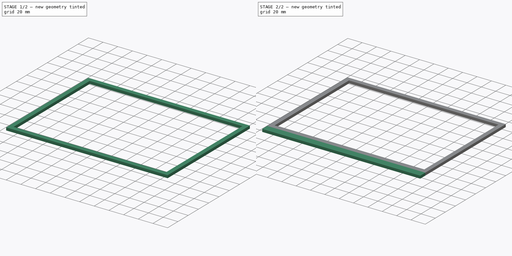
[diagram: build sequence overview — one tinted view per stage of 2, left to right]
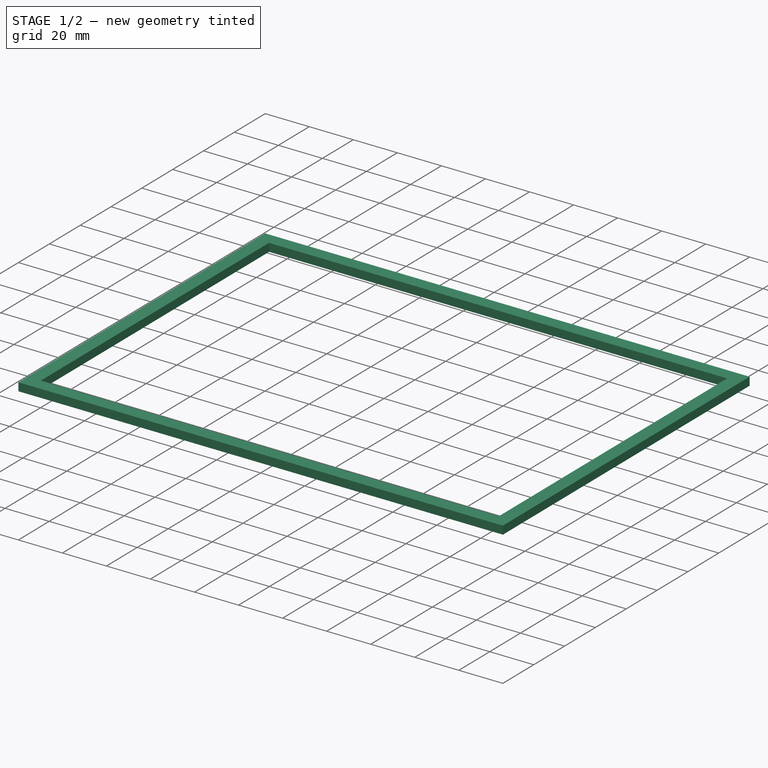
[diagram: stage 1 of 2 — iso view after this stage's code; geometry added in this stage tinted green]
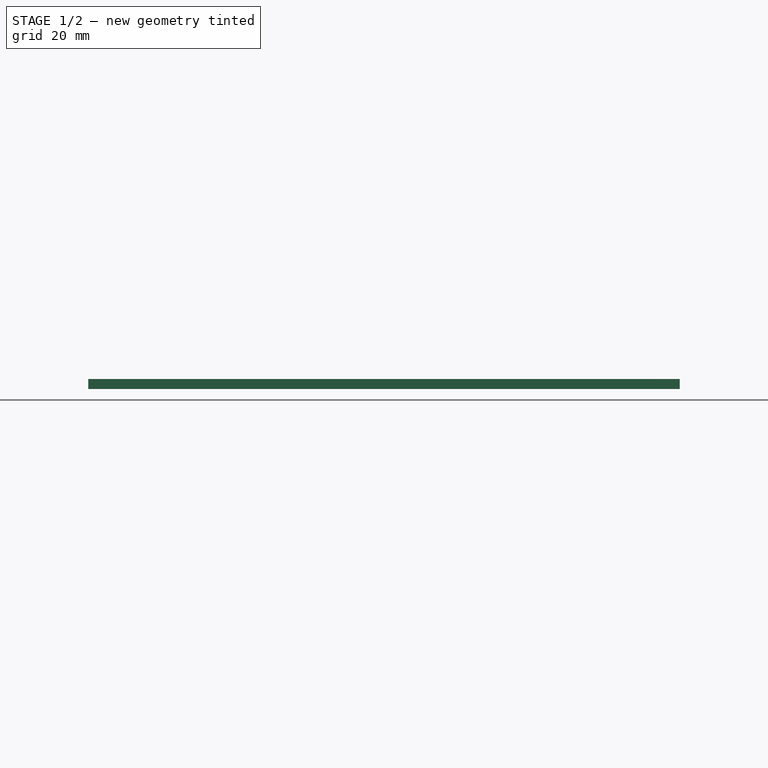
[diagram: stage 1 of 2 — front view after this stage's code; geometry added in this stage tinted green]
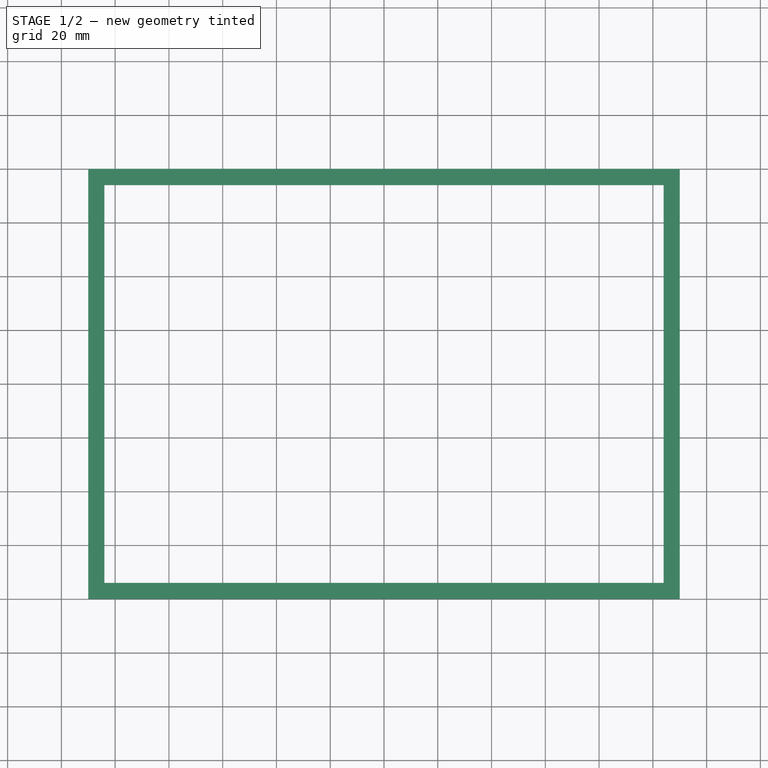
[diagram: stage 1 of 2 — top view after this stage's code; geometry added in this stage tinted green]
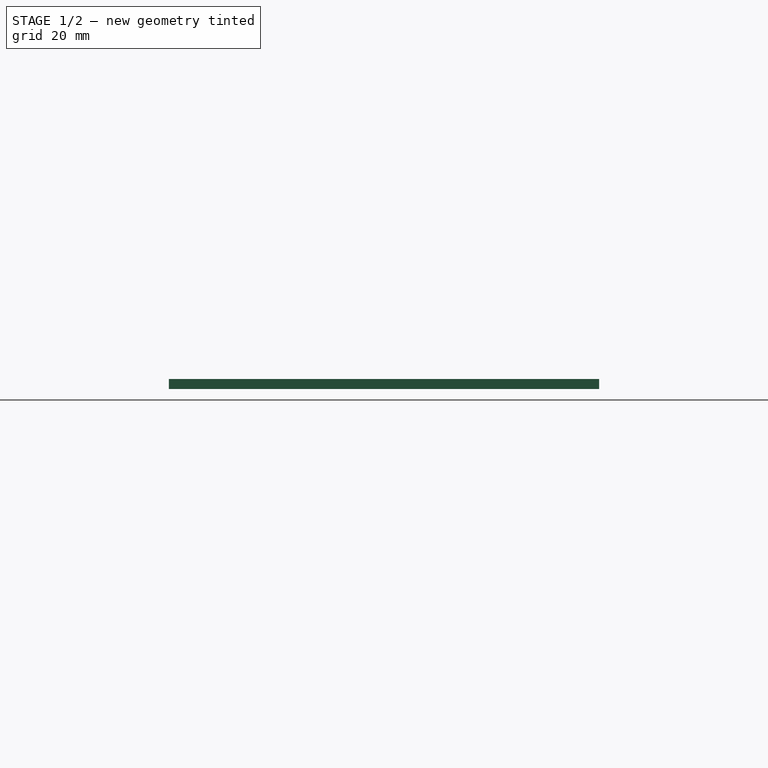
[diagram: stage 1 of 2 — right view after this stage's code; geometry added in this stage tinted green]
FCSTD DOCUMENT  (FreeCAD 0.21R33668 +26 (Git))
Label: overlay
License: All rights reserved
LicenseURL: https://en.wikipedia.org/wiki/All_rights_reserved
objects: Sketcher::SketchObject×2, PartDesign::Pad×2, PartDesign::Pocket×1, PartDesign::Body×1, Part::Part2DObjectPython×1
note: 10 computed .brp shape members not serialized (recipe doc carries the construction recipe); baked Part::Feature solids carry a one-line shape summary decoded from their .brp

FEATURE [Sketcher::SketchObject] Sketch
  FullyConstrained = true
  MapMode = 5
  Support = -> [XY_Plane]
  sketch-geometry (4):
    g0: LineSegment StartX=-110 StartY=80 StartZ=0 EndX=110 EndY=80 EndZ=0
    g1: LineSegment StartX=110 StartY=80 StartZ=0 EndX=110 EndY=-80 EndZ=0
    g2: LineSegment StartX=110 StartY=-80 StartZ=0 EndX=-110 EndY=-80 EndZ=0
    g3: LineSegment StartX=-110 StartY=-80 StartZ=0 EndX=-110 EndY=80 EndZ=0
  constraints (10):
    c: Coincident(g0,g1)
    c: Coincident(g1,g2)
    c: Coincident(g2,g3)
    c: Coincident(g3,g0)
    c: Horizontal(g2)
    c: Vertical(g3)
    c: Symmetric(g0,g0,g-2)
    c: Symmetric(g0,g1,g-1)
    c: DistanceX(g0,g0) = 220
    c: DistanceY(g1,g1) = 160
FEATURE [PartDesign::Pad] Pad
  Direction = (0,0,1)
  Length = 3.7
  Length2 = 10
  Profile = -> Sketch
  ReferenceAxis = -> Sketch [N_Axis]
  Type = 0
FEATURE [Sketcher::SketchObject] Sketch001
  FullyConstrained = true
  MapMode = 5
  Placement = pos=(0,0,3.7) rot=(0,0,1;0rad)
  Support = -> [Pad]
  sketch-geometry (4):
    g0: LineSegment StartX=-104 StartY=74 StartZ=0 EndX=104 EndY=74 EndZ=0
    g1: LineSegment StartX=104 StartY=74 StartZ=0 EndX=104 EndY=-74 EndZ=0
    g2: LineSegment StartX=104 StartY=-74 StartZ=0 EndX=-104 EndY=-74 EndZ=0
    g3: LineSegment StartX=-104 StartY=-74 StartZ=0 EndX=-104 EndY=74 EndZ=0
  constraints (10):
    c: Coincident(g0,g1)
    c: Coincident(g1,g2)
    c: Coincident(g2,g3)
    c: Coincident(g3,g0)
    c: Horizontal(g2)
    c: Vertical(g1)
    c: Symmetric(g0,g2,g-1)
    c: Symmetric(g0,g0,g-2)
    c: DistanceY(g1,g1) = 148
    c: DistanceX(g0,g0) = 208
FEATURE [PartDesign::Pocket] Pocket
  BaseFeature = -> Pad
  Direction = (0,0,-1)
  Length = 5
  Length2 = 5
  Profile = -> Sketch001
  ReferenceAxis = -> Sketch001 [N_Axis]
  Type = 1
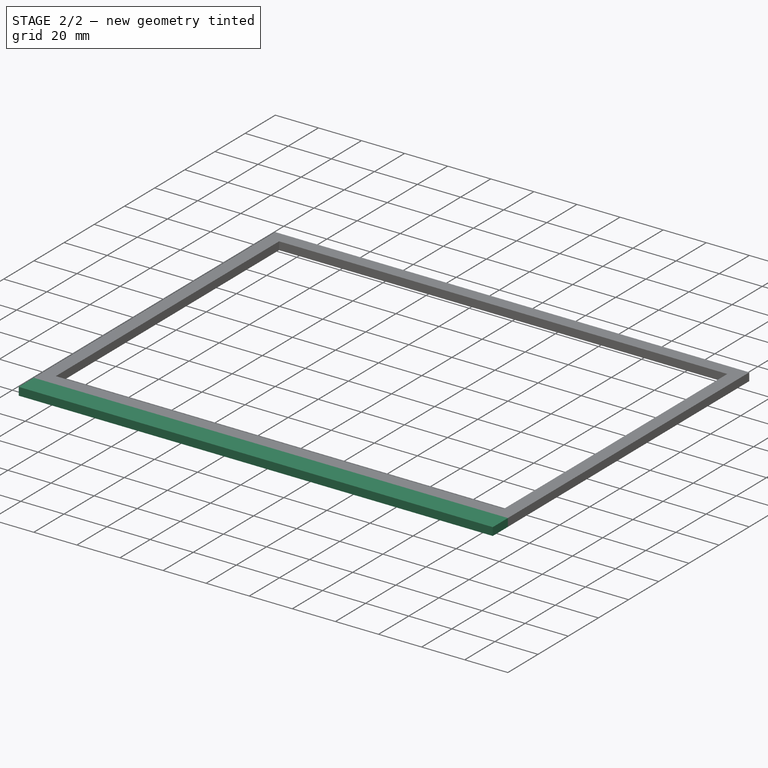
[diagram: stage 2 of 2 — iso view after this stage's code; geometry added in this stage tinted green]
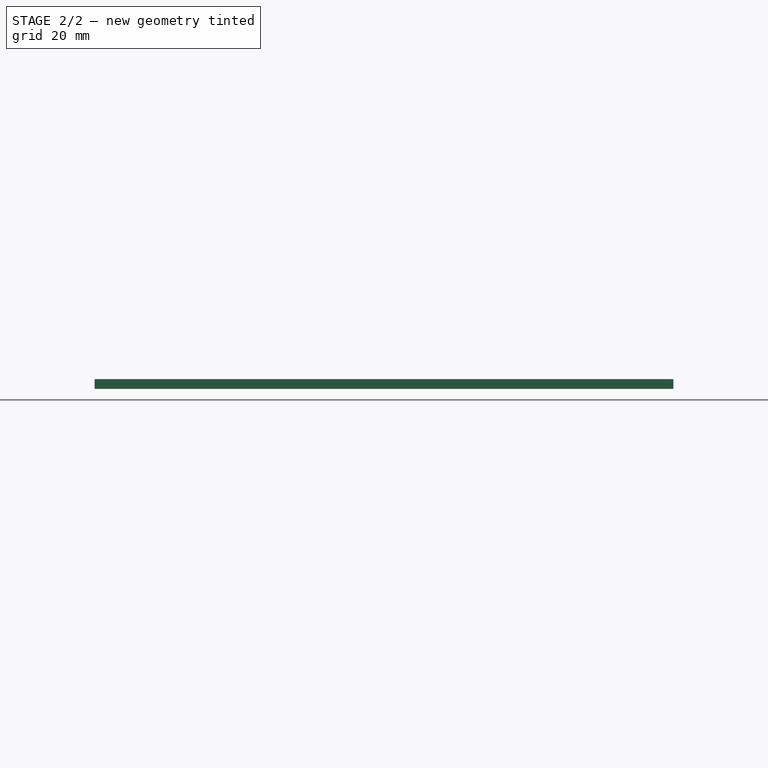
[diagram: stage 2 of 2 — front view after this stage's code; geometry added in this stage tinted green]
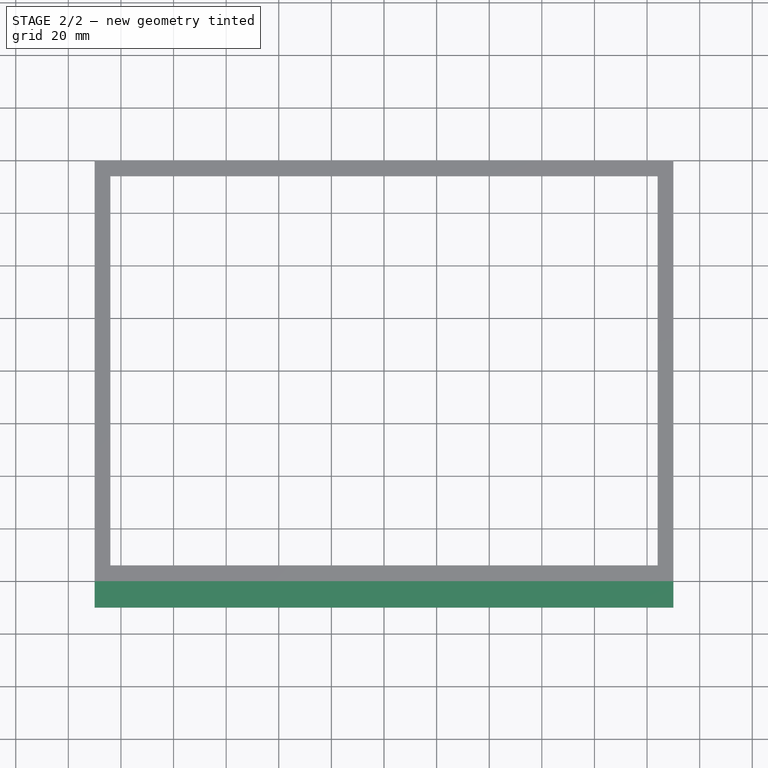
[diagram: stage 2 of 2 — top view after this stage's code; geometry added in this stage tinted green]
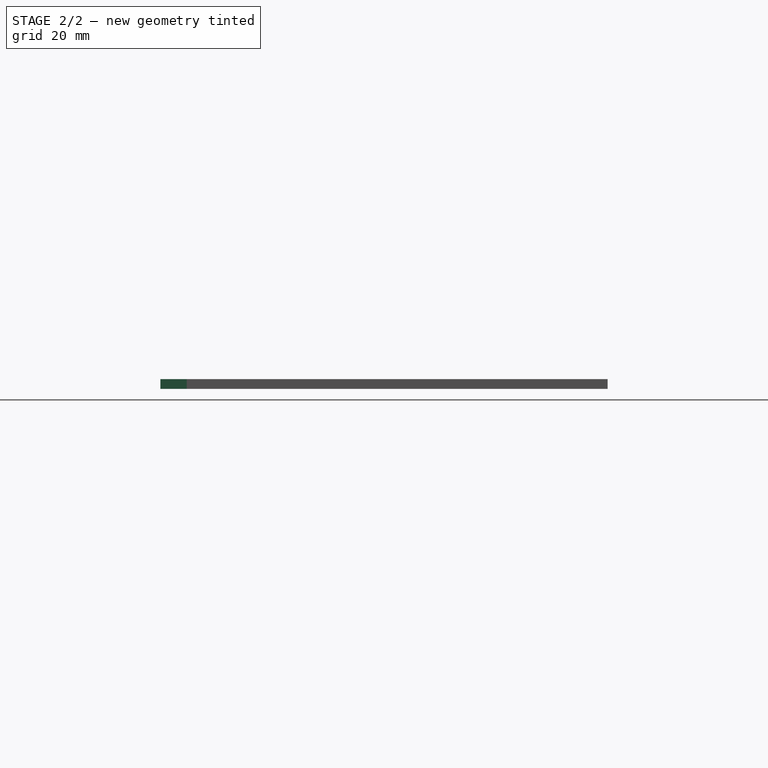
[diagram: stage 2 of 2 — right view after this stage's code; geometry added in this stage tinted green]
FEATURE [PartDesign::Pad] Pad001
  BaseFeature = -> Pocket
  Direction = (0,-1,0)
  Length = 10
  Length2 = 10
  Profile = -> Pocket [Face6]
  Type = 0
FEATURE [PartDesign::Body] Body  label="Zawartość"
  Group = -> [Sketch,Pad,Sketch001,Pocket,Pad001]
  Origin = -> Origin
  Tip = -> Pad001
FEATURE [Part::Part2DObjectPython] ShapeString  # Draft 2D object (typed FeaturePython)
  FontFile = <path>
  MakeFace = true
  Placement = pos=(7.06588,-78.1889,13.3312) rot=(-0.192665,0.129422,0.972692;3.07508rad)
  Size = 10
  String = MARS
  Tracking = 0
note: 1 file-system path scrubbed to <path> (originals preserved in the JSON sidecar)
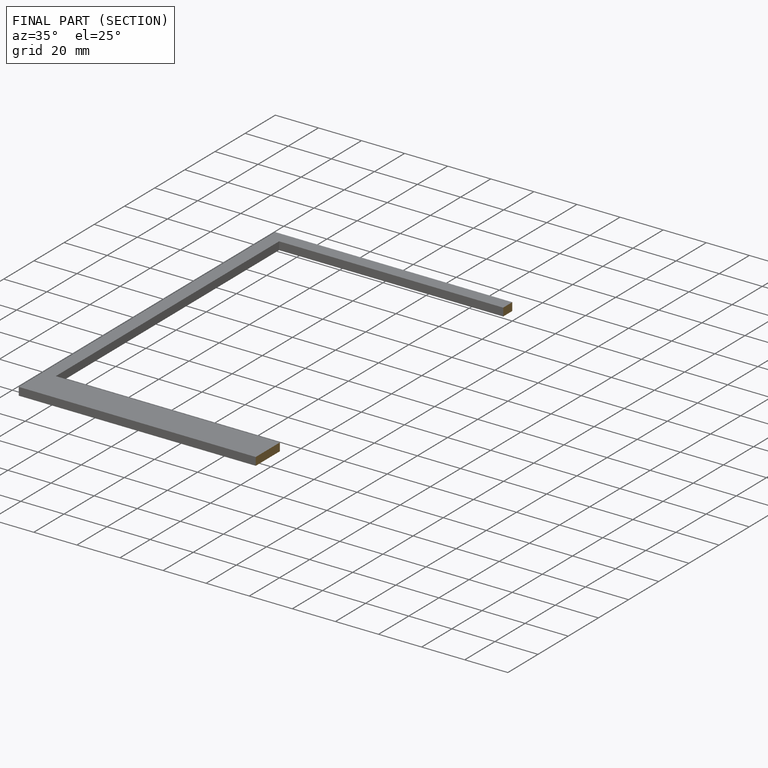
[diagram: finished part — half-section view (interior)]
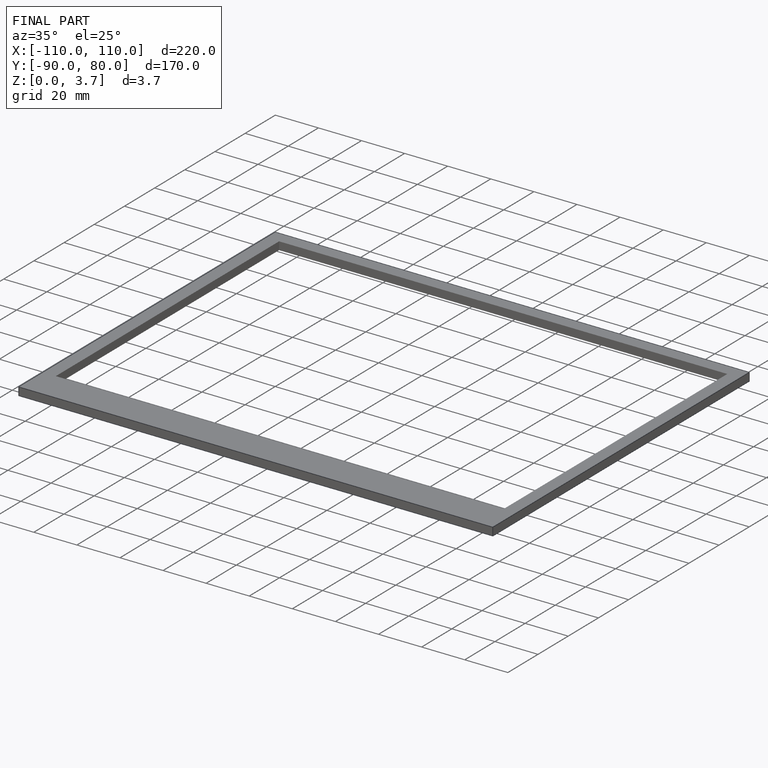
[diagram: finished part — iso view with bounding-box wireframe]
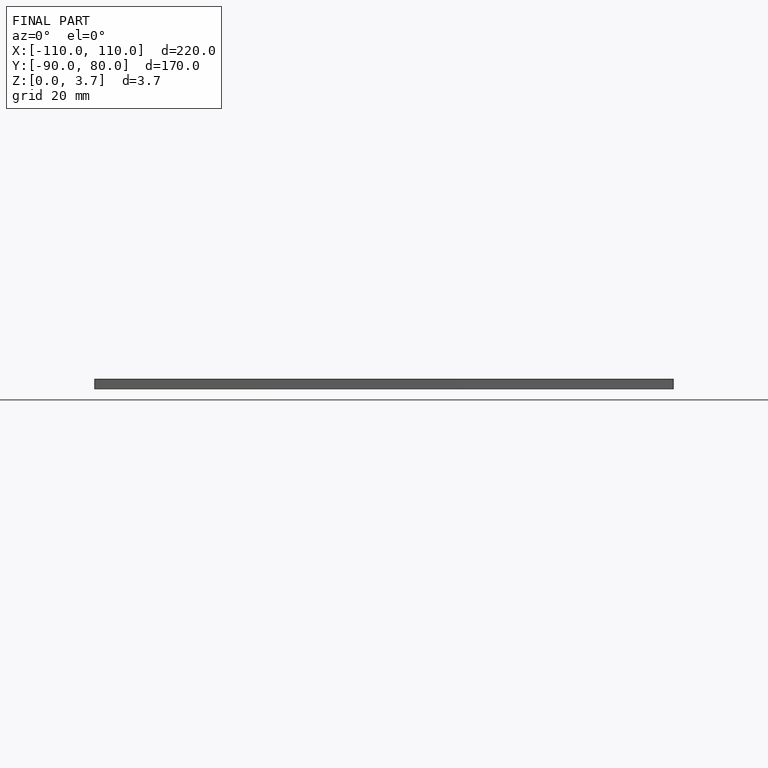
[diagram: finished part — front view with bounding-box wireframe]
